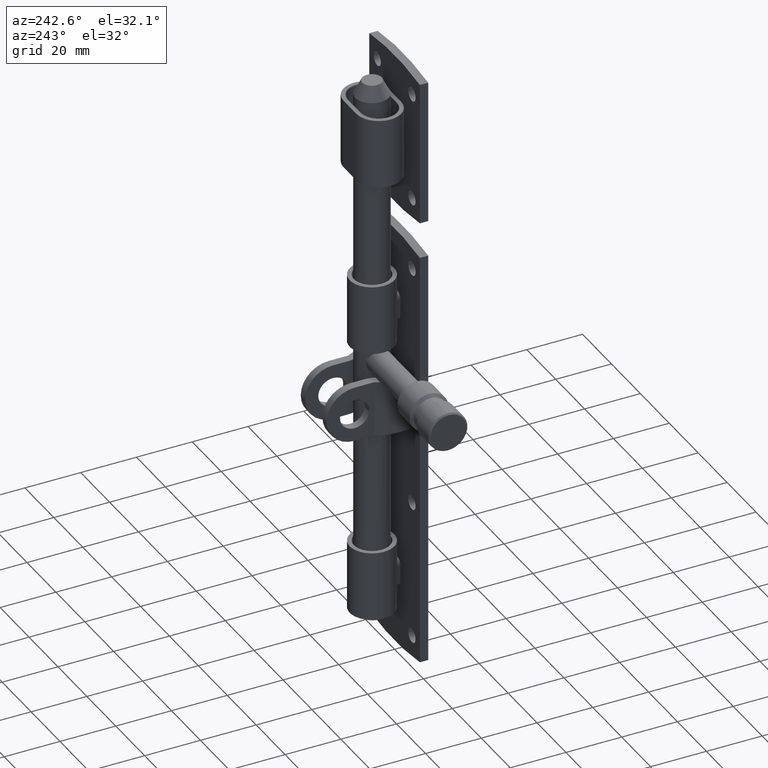
[diagram: clean part render]
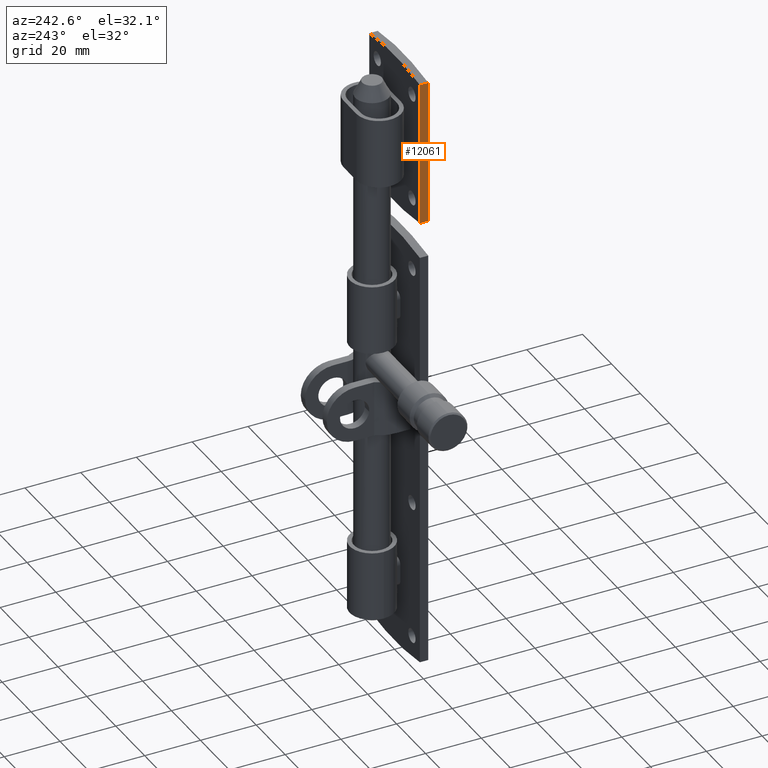
[diagram: same view with one face highlighted and labeled with its STEP entity id]
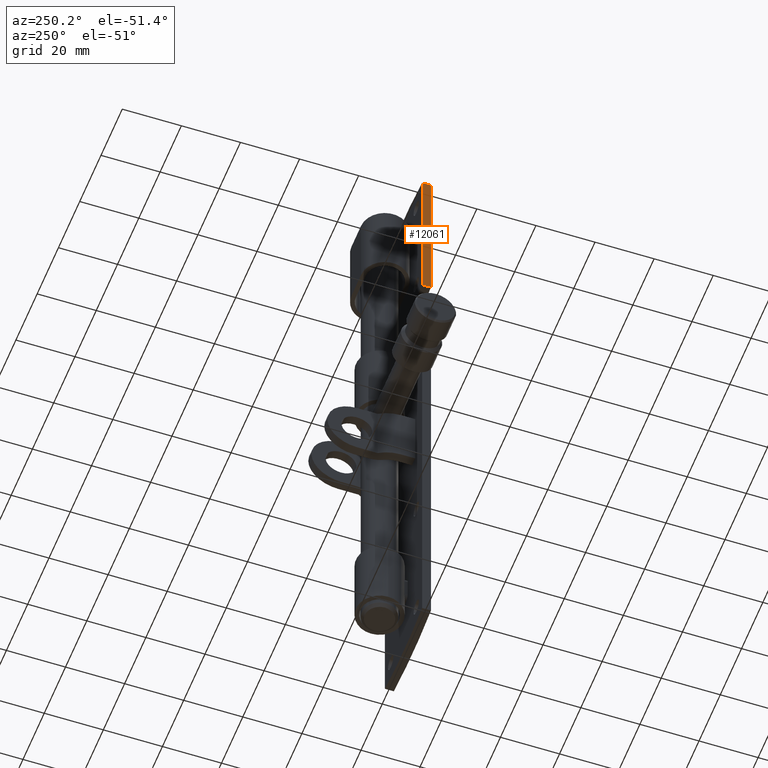
[diagram: same view with one face highlighted and labeled with its STEP entity id]
A machine part, auxiliary view. The second image highlights one B-rep face of the part: STEP entity #12061.
A second angle (auxiliary view) of the same face is appended — the face is thin or edge-on in the first view.
In plain terms, the highlighted planar face has unit normal (1, 0, 0).
Its self-contained STEP definition (entity closure, byte-faithful):
#99 = ORIENTED_EDGE ( 'NONE', *, *, #2368, .F. ) ;
#203 = EDGE_CURVE ( 'NONE', #11358, #8332, #5914, .T. ) ;
#756 = VERTEX_POINT ( 'NONE', #1141 ) ;
#1141 = CARTESIAN_POINT ( 'NONE',  ( 17.50000000000000000, 3.000000000000000000, 26.00000000000000355 ) ) ;
#2034 = CARTESIAN_POINT ( 'NONE',  ( 17.50000000000001421, 3.000000000000000000, -25.99999999999998224 ) ) ;
#2284 = FACE_OUTER_BOUND ( 'NONE', #15095, .T. ) ;
#2368 = EDGE_CURVE ( 'NONE', #756, #11358, #5472, .T. ) ;
#2475 = AXIS2_PLACEMENT_3D ( 'NONE', #2655, #5065, #6279 ) ;
#2560 = CARTESIAN_POINT ( 'NONE',  ( 17.50000000000000000, 0.000000000000000000, -26.00000000000000000 ) ) ;
#2653 = VECTOR ( 'NONE', #8592, 1000.000000000000000 ) ;
#2655 = CARTESIAN_POINT ( 'NONE',  ( 17.50000000000000000, 3.000000000000000000, -26.00000000000000000 ) ) ;
#3715 = PLANE ( 'NONE',  #2475 ) ;
#3877 = VERTEX_POINT ( 'NONE', #13433 ) ;
#4737 = ORIENTED_EDGE ( 'NONE', *, *, #10852, .T. ) ;
#5065 = DIRECTION ( 'NONE',  ( -1.000000000000000000, 0.000000000000000000, 0.000000000000000000 ) ) ;
#5472 = LINE ( 'NONE', #13331, #2653 ) ;
#5696 = LINE ( 'NONE', #9806, #7734 ) ;
#5914 = LINE ( 'NONE', #2034, #9060 ) ;
#6279 = DIRECTION ( 'NONE',  ( 0.000000000000000000, 0.000000000000000000, 1.000000000000000000 ) ) ;
#7734 = VECTOR ( 'NONE', #12059, 1000.000000000000000 ) ;
#7843 = CARTESIAN_POINT ( 'NONE',  ( 17.50000000000001421, 3.000000000000000000, -25.99999999999998224 ) ) ;
#8332 = VERTEX_POINT ( 'NONE', #11267 ) ;
#8592 = DIRECTION ( 'NONE',  ( -0.000000000000000000, -0.000000000000000000, -1.000000000000000000 ) ) ;
#9060 = VECTOR ( 'NONE', #9236, 1000.000000000000000 ) ;
#9236 = DIRECTION ( 'NONE',  ( -0.000000000000000000, -1.000000000000000000, -0.000000000000000000 ) ) ;
#9273 = ORIENTED_EDGE ( 'NONE', *, *, #9888, .T. ) ;
#9806 = CARTESIAN_POINT ( 'NONE',  ( 17.50000000000000000, 3.000000000000000000, 26.00000000000000355 ) ) ;
#9888 = EDGE_CURVE ( 'NONE', #756, #3877, #5696, .T. ) ;
#10650 = ORIENTED_EDGE ( 'NONE', *, *, #203, .F. ) ;
#10852 = EDGE_CURVE ( 'NONE', #3877, #8332, #11046, .T. ) ;
#11046 = LINE ( 'NONE', #2560, #12328 ) ;
#11267 = CARTESIAN_POINT ( 'NONE',  ( 17.50000000000001421, 0.000000000000000000, -25.99999999999998224 ) ) ;
#11358 = VERTEX_POINT ( 'NONE', #7843 ) ;
#12059 = DIRECTION ( 'NONE',  ( -0.000000000000000000, -1.000000000000000000, -0.000000000000000000 ) ) ;
#12061 = ADVANCED_FACE ( 'NONE', ( #2284 ), #3715, .F. ) ;
#12328 = VECTOR ( 'NONE', #13320, 1000.000000000000000 ) ;
#13320 = DIRECTION ( 'NONE',  ( -0.000000000000000000, -0.000000000000000000, -1.000000000000000000 ) ) ;
#13331 = CARTESIAN_POINT ( 'NONE',  ( 17.50000000000000000, 3.000000000000000000, -26.00000000000000000 ) ) ;
#13433 = CARTESIAN_POINT ( 'NONE',  ( 17.50000000000000000, 0.000000000000000000, 26.00000000000000355 ) ) ;
#15095 = EDGE_LOOP ( 'NONE', ( #4737, #10650, #99, #9273 ) ) ;